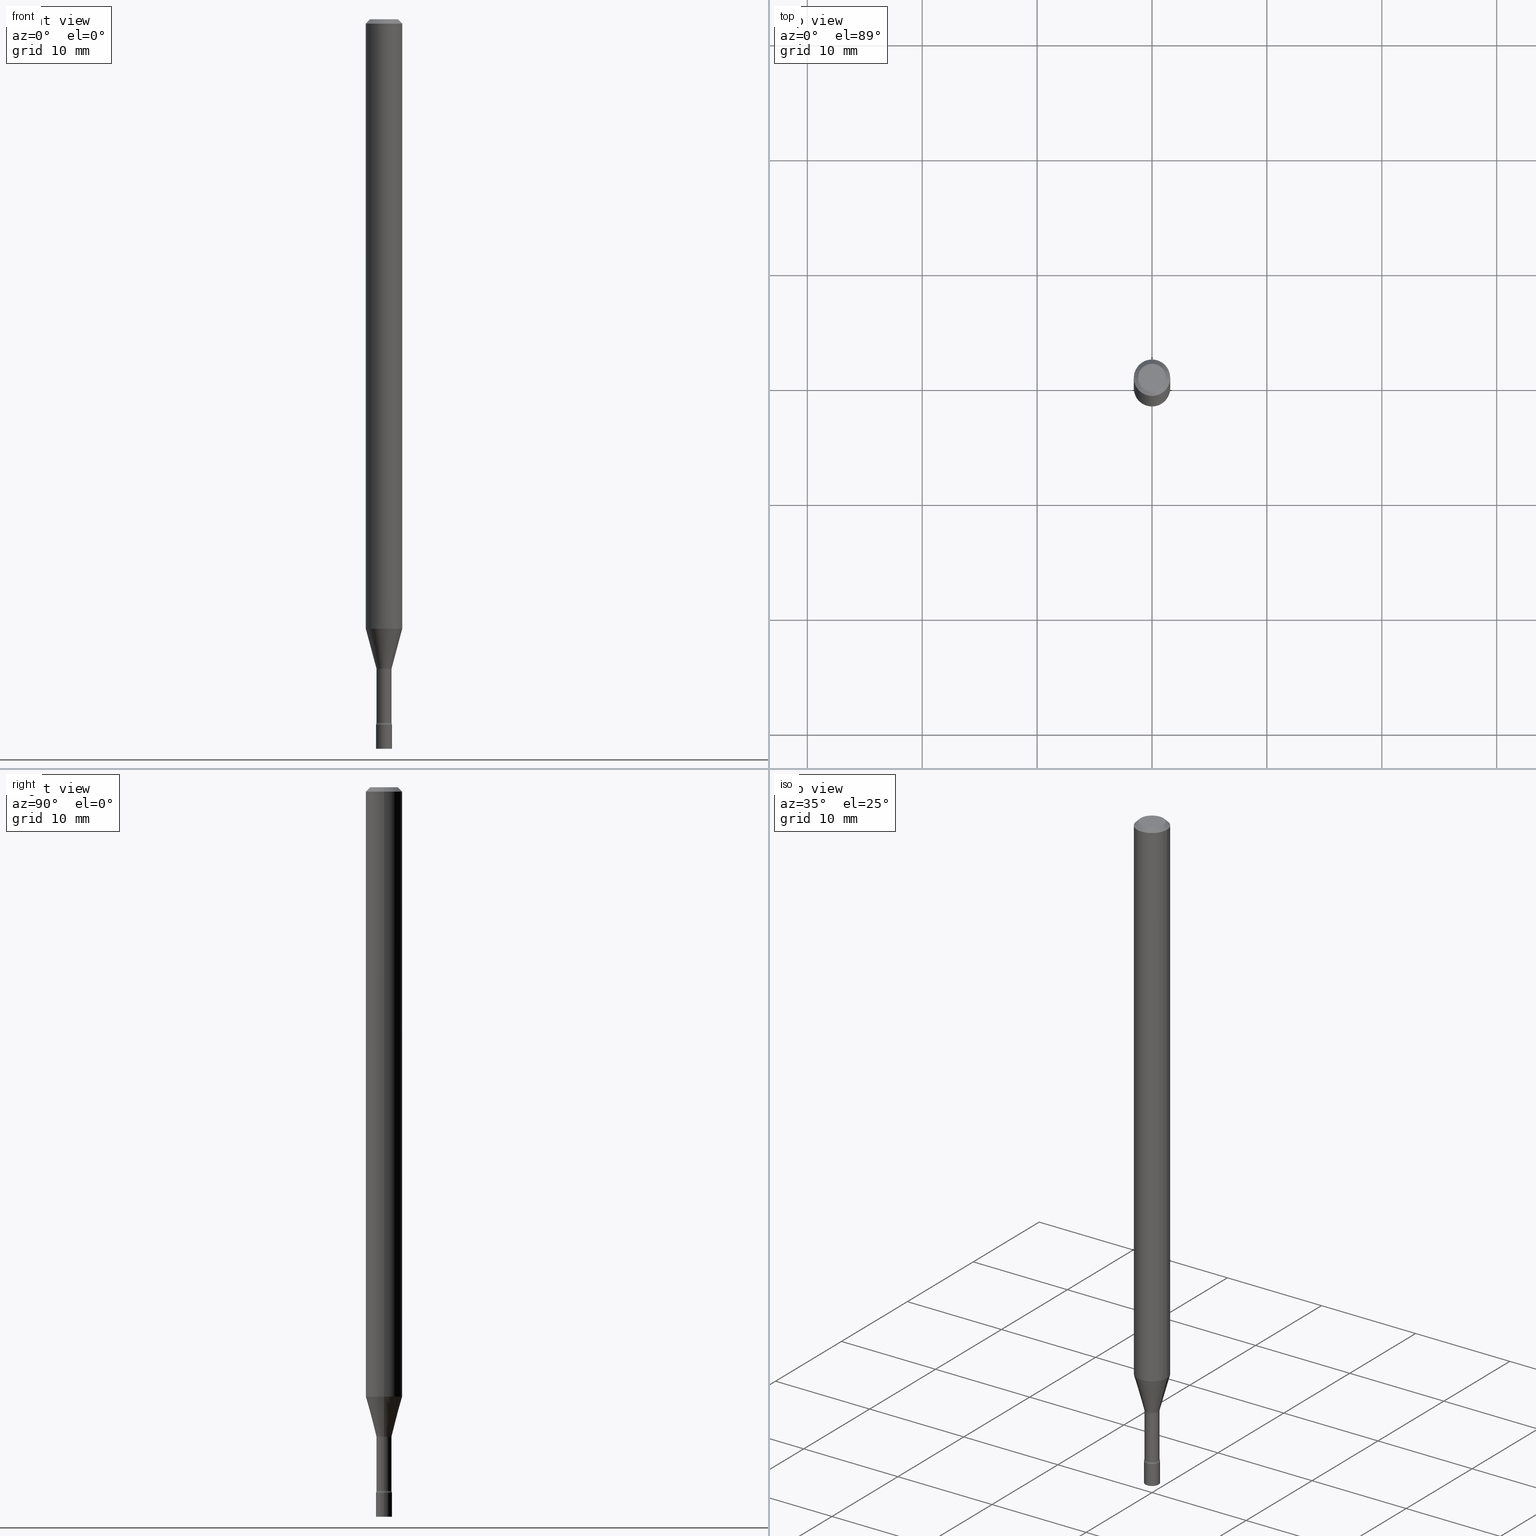
[diagram: canonical four-view strip — front | top / right | iso, engineering-drawing reading convention]
A machine part, canonical four-view strip (front | top / right | iso — engineering-drawing reading convention). The complete STEP part file that produces these views, byte-faithful:
ISO-10303-21;
HEADER;
FILE_DESCRIPTION (( 'STEP AP203' ),
    '1' );
FILE_NAME ('09677.STEP',
    '2024-03-09T00:42:40',
    ( '' ),
    ( '' ),
    'SwSTEP 2.0',
    'SolidWorks 2023',
    '' );
FILE_SCHEMA (( 'CONFIG_CONTROL_DESIGN' ));
ENDSEC;

DATA;
#1 = EDGE_CURVE ( 'NONE', #491, #335, #75, .T. ) ;
#2 = LINE ( 'NONE', #443, #513 ) ;
#3 = EDGE_LOOP ( 'NONE', ( #460, #303, #383, #221 ) ) ;
#4 = ADVANCED_BREP_SHAPE_REPRESENTATION ( '09677', ( #56, #385, #35 ), #66 ) ;
#5 = CC_DESIGN_PERSON_AND_ORGANIZATION_ASSIGNMENT ( #401, #356, ( #138 ) ) ;
#6 = AXIS2_PLACEMENT_3D ( 'NONE', #330, #488, #139 ) ;
#7 = CARTESIAN_POINT ( 'NONE',  ( -0.06250000000000000000, -3.227588070781090630E-15, -0.01500000000000003067 ) ) ;
#8 = CONICAL_SURFACE ( 'NONE', #265, 0.02636111260566398329, 0.2617993877991496854 ) ;
#9 = VERTEX_POINT ( 'NONE', #500 ) ;
#10 = DIRECTION ( 'NONE',  ( 2.438088387897960049E-29, -3.491481338843145188E-15, -1.000000000000000000 ) ) ;
#11 = ORIENTED_EDGE ( 'NONE', *, *, #192, .T. ) ;
#12 = DIRECTION ( 'NONE',  ( -2.445468806185136597E-29, 3.491481338843145583E-15, 1.000000000000000000 ) ) ;
#13 = EDGE_CURVE ( 'NONE', #331, #339, #193, .T. ) ;
#14 = VERTEX_POINT ( 'NONE', #426 ) ;
#15 = DIRECTION ( 'NONE',  ( 1.000000000000000000, -6.982962677686295110E-15, 0.000000000000000000 ) ) ;
#16 = CIRCLE ( 'NONE', #340, 0.02585000000000006043 ) ;
#17 = VERTEX_POINT ( 'NONE', #150 ) ;
#18 = LOCAL_TIME ( 19, 42, 40.00000000000000000, #313 ) ;
#19 = CIRCLE ( 'NONE', #398, 0.01499999999999994220 ) ;
#20 = EDGE_LOOP ( 'NONE', ( #64, #354, #496, #424 ) ) ;
#21 = ADVANCED_FACE ( 'NONE', ( #107 ), #189, .T. ) ;
#22 = LENGTH_MEASURE_WITH_UNIT ( LENGTH_MEASURE( 0.02539999999999999897 ), #497 );
#23 = ORIENTED_EDGE ( 'NONE', *, *, #210, .F. ) ;
#24 = EDGE_CURVE ( 'NONE', #452, #14, #342, .T. ) ;
#25 = DIRECTION ( 'NONE',  ( 1.000000000000000000, -6.982962677686254089E-15, 0.000000000000000000 ) ) ;
#26 = CARTESIAN_POINT ( 'NONE',  ( 5.910698104549476805E-29, -8.438910395983884306E-15, -2.417000000000000259 ) ) ;
#27 = AXIS2_PLACEMENT_3D ( 'NONE', #37, #85, #518 ) ;
#28 = VECTOR ( 'NONE', #364, 39.37007874015748143 ) ;
#29 = APPROVAL_DATE_TIME ( #404, #362 ) ;
#30 = ADVANCED_FACE ( 'NONE', ( #386 ), #121, .F. ) ;
#31 = CARTESIAN_POINT ( 'NONE',  ( 3.668203209277712094E-31, -5.237222008264728876E-17, -0.01500000000000003067 ) ) ;
#32 = DATE_TIME_ROLE ( 'creation_date' ) ;
#33 = LINE ( 'NONE', #195, #482 ) ;
#34 = CARTESIAN_POINT ( 'NONE',  ( 3.668203209277712094E-31, -5.237222008264728876E-17, -0.01500000000000003067 ) ) ;
#35 = AXIS2_PLACEMENT_3D ( 'NONE', #235, #326, #472 ) ;
#36 = AXIS2_PLACEMENT_3D ( 'NONE', #349, #421, #307 ) ;
#37 = CARTESIAN_POINT ( 'NONE',  ( 7.070806723891919892E-46, -1.009523804376275404E-31, -2.891391092786900929E-17 ) ) ;
#38 = EDGE_CURVE ( 'NONE', #207, #17, #111, .T. ) ;
#39 = DIRECTION ( 'NONE',  ( 1.000000000000000000, -6.982962677686277755E-15, 0.000000000000000000 ) ) ;
#40 = PERSON_AND_ORGANIZATION ( #251, #215 ) ;
#41 = CC_DESIGN_DATE_AND_TIME_ASSIGNMENT ( #475, #205, ( #138 ) ) ;
#42 = DIRECTION ( 'NONE',  ( 1.000000000000000000, -6.982962677686256455E-15, 0.000000000000000000 ) ) ;
#43 = DATE_AND_TIME ( #519, #381 ) ;
#44 = CIRCLE ( 'NONE', #184, 0.02636111260566398329 ) ;
#45 = VECTOR ( 'NONE', #302, 39.37007874015748143 ) ;
#46 = ORIENTED_EDGE ( 'NONE', *, *, #355, .F. ) ;
#47 = PERSON_AND_ORGANIZATION ( #251, #215 ) ;
#48 = DIRECTION ( 'NONE',  ( 1.000000000000000000, -6.982962677686266711E-15, 4.876176775795935793E-29 ) ) ;
#49 = EDGE_LOOP ( 'NONE', ( #369, #230, #299, #219 ) ) ;
#50 = DIRECTION ( 'NONE',  ( 2.445468806185136597E-29, -3.491481338843145583E-15, -1.000000000000000000 ) ) ;
#51 = ORIENTED_EDGE ( 'NONE', *, *, #427, .F. ) ;
#52 = CIRCLE ( 'NONE', #446, 0.02750000000000000014 ) ;
#53 = CARTESIAN_POINT ( 'NONE',  ( 0.000000000000000000, 0.000000000000000000, 0.000000000000000000 ) ) ;
#54 = CC_DESIGN_APPROVAL ( #453, ( #127 ) ) ;
#55 = ORIENTED_EDGE ( 'NONE', *, *, #124, .F. ) ;
#56 = MANIFOLD_SOLID_BREP ( 'Body-Move/Copy2[1]', #240 ) ;
#57 = ADVANCED_FACE ( 'NONE', ( #397 ), #241, .F. ) ;
#58 = DIRECTION ( 'NONE',  ( 1.000000000000000000, -6.982962677686260400E-15, 4.883557194083110659E-29 ) ) ;
#59 = ORIENTED_EDGE ( 'NONE', *, *, #355, .T. ) ;
#60 = DIRECTION ( 'NONE',  ( -2.445468806185136597E-29, 3.491481338843145583E-15, 1.000000000000000000 ) ) ;
#61 = ORIENTED_EDGE ( 'NONE', *, *, #106, .T. ) ;
#62 = DIRECTION ( 'NONE',  ( -2.445468806185136877E-29, 3.491481338843145188E-15, 1.000000000000000000 ) ) ;
#63 = VECTOR ( 'NONE', #118, 39.37007874015748143 ) ;
#64 = ORIENTED_EDGE ( 'NONE', *, *, #81, .F. ) ;
#65 = EDGE_CURVE ( 'NONE', #331, #9, #19, .T. ) ;
#66 =( GEOMETRIC_REPRESENTATION_CONTEXT ( 3 ) GLOBAL_UNCERTAINTY_ASSIGNED_CONTEXT ( ( #213 ) ) GLOBAL_UNIT_ASSIGNED_CONTEXT ( ( #105, #152, #345 ) ) REPRESENTATION_CONTEXT ( 'NONE', 'WORKASPACE' ) );
#67 = CARTESIAN_POINT ( 'NONE',  ( -0.02750000000000000014, -8.388407619211846505E-15, -2.417000000000000259 ) ) ;
#68 = DIRECTION ( 'NONE',  ( 1.000000000000000000, -6.982962677686279332E-15, 0.000000000000000000 ) ) ;
#69 = EDGE_CURVE ( 'NONE', #158, #375, #258, .T. ) ;
#70 = DIRECTION ( 'NONE',  ( 1.000000000000000000, -6.982962677686266711E-15, 4.876176775795935793E-29 ) ) ;
#71 = EDGE_LOOP ( 'NONE', ( #148, #268, #144, #59 ) ) ;
#72 = CYLINDRICAL_SURFACE ( 'NONE', #517, 0.02585000000000002920 ) ;
#73 = ORIENTED_EDGE ( 'NONE', *, *, #65, .F. ) ;
#74 = AXIS2_PLACEMENT_3D ( 'NONE', #348, #351, #470 ) ;
#75 = CIRCLE ( 'NONE', #433, 0.06250000000000000000 ) ;
#76 = CARTESIAN_POINT ( 'NONE',  ( 0.06250000000000000000, -4.811533449433680977E-16, -0.01500000000000003067 ) ) ;
#77 = PRODUCT_DEFINITION_SHAPE ( 'NONE', 'NONE',  #127 ) ;
#78 = SECURITY_CLASSIFICATION_LEVEL ( 'unclassified' ) ;
#79 = DIRECTION ( 'NONE',  ( 1.000000000000000000, -6.982962677686266711E-15, 4.876176775795935793E-29 ) ) ;
#80 = CARTESIAN_POINT ( 'NONE',  ( 0.02750000000000000014, -8.920734820744236646E-15, -2.500000000000000000 ) ) ;
#81 = EDGE_CURVE ( 'NONE', #375, #491, #131, .T. ) ;
#82 = AXIS2_PLACEMENT_3D ( 'NONE', #368, #376, #141 ) ;
#83 = APPROVAL_PERSON_ORGANIZATION ( #444, #453, #393 ) ;
#84 = DIRECTION ( 'NONE',  ( -1.000000000000000000, 6.982962677686266711E-15, 0.000000000000000000 ) ) ;
#85 = DIRECTION ( 'NONE',  ( -2.445468806185136597E-29, 3.491481338843145583E-15, 1.000000000000000000 ) ) ;
#86 = CALENDAR_DATE ( 2024, 8, 3 ) ;
#87 = EDGE_CURVE ( 'NONE', #418, #493, #237, .T. ) ;
#88 = DIRECTION ( 'NONE',  ( 1.000000000000000000, -6.982962677686262766E-15, 0.000000000000000000 ) ) ;
#89 = DATE_AND_TIME ( #86, #332 ) ;
#90 = AXIS2_PLACEMENT_3D ( 'NONE', #256, #50, #296 ) ;
#91 = LOCAL_TIME ( 19, 42, 40.00000000000000000, #194 ) ;
#92 = DIRECTION ( 'NONE',  ( -1.000000000000000000, 6.982962677686265922E-15, -4.876176775795935793E-29 ) ) ;
#93 = ORIENTED_EDGE ( 'NONE', *, *, #196, .F. ) ;
#94 = FACE_OUTER_BOUND ( 'NONE', #508, .T. ) ;
#95 = VERTEX_POINT ( 'NONE', #361 ) ;
#96 = DIRECTION ( 'NONE',  ( -2.445468806185136597E-29, 3.491481338843145583E-15, 1.000000000000000000 ) ) ;
#97 = VERTEX_POINT ( 'NONE', #473 ) ;
#98 = EDGE_CURVE ( 'NONE', #207, #97, #33, .T. ) ;
#99 = TOROIDAL_SURFACE ( 'NONE', #214, 0.04085000000000000436, 0.01499999999999994740 ) ;
#100 = DIRECTION ( 'NONE',  ( 1.000000000000000000, -6.982962677686267499E-15, 4.876681293081646444E-29 ) ) ;
#101 = ORIENTED_EDGE ( 'NONE', *, *, #69, .T. ) ;
#102 = AXIS2_PLACEMENT_3D ( 'NONE', #400, #481, #79 ) ;
#103 = DIRECTION ( 'NONE',  ( 1.000000000000000000, -6.982962677686277755E-15, 0.000000000000000000 ) ) ;
#104 = VERTEX_POINT ( 'NONE', #80 ) ;
#105 =( CONVERSION_BASED_UNIT ( 'INCH', #22 ) LENGTH_UNIT ( ) NAMED_UNIT ( #223 ) );
#106 = EDGE_CURVE ( 'NONE', #95, #331, #16, .T. ) ;
#107 = FACE_OUTER_BOUND ( 'NONE', #209, .T. ) ;
#108 = CARTESIAN_POINT ( 'NONE',  ( -0.02636111260566398329, -7.210736072578448684E-15, -2.223092501787273356 ) ) ;
#109 = CC_DESIGN_APPROVAL ( #272, ( #138 ) ) ;
#110 = EDGE_LOOP ( 'NONE', ( #471, #312 ) ) ;
#111 = CIRCLE ( 'NONE', #249, 0.01500000000000001853 ) ;
#112 = CARTESIAN_POINT ( 'NONE',  ( 5.445997374903524413E-29, -7.775440912504077838E-15, -2.226974787463811278 ) ) ;
#113 = DIRECTION ( 'NONE',  ( 1.000000000000000000, -6.982962677686260400E-15, 4.883557194083110659E-29 ) ) ;
#114 = CARTESIAN_POINT ( 'NONE',  ( -0.06250000000000000000, 3.840629472727443437E-16, -0.01500000000000003067 ) ) ;
#115 = ORIENTED_EDGE ( 'NONE', *, *, #380, .F. ) ;
#116 = ADVANCED_FACE ( 'NONE', ( #441 ), #234, .F. ) ;
#117 = PERSON_AND_ORGANIZATION_ROLE ( 'creator' ) ;
#118 = DIRECTION ( 'NONE',  ( -0.2588190451025210170, 5.211531920934547886E-15, 0.9659258262890682012 ) ) ;
#119 = CIRCLE ( 'NONE', #430, 0.02750000000000000014 ) ;
#120 = CIRCLE ( 'NONE', #198, 0.02750000000000000014 ) ;
#121 = TOROIDAL_SURFACE ( 'NONE', #176, 0.04084999999999999742, 0.01500000000000002373 ) ;
#122 = CALENDAR_DATE ( 2024, 8, 3 ) ;
#123 = DIRECTION ( 'NONE',  ( 1.000000000000000000, -6.982962677686262766E-15, 0.000000000000000000 ) ) ;
#124 = EDGE_CURVE ( 'NONE', #335, #491, #222, .T. ) ;
#125 = DIRECTION ( 'NONE',  ( 1.000000000000000000, -6.982962677686279332E-15, 0.000000000000000000 ) ) ;
#126 = CARTESIAN_POINT ( 'NONE',  ( 3.668203209277712094E-31, -5.237222008264728876E-17, -0.01500000000000003067 ) ) ;
#127 = PRODUCT_DEFINITION ( 'UNKNOWN', '', #480, #465 ) ;
#128 = AXIS2_PLACEMENT_3D ( 'NONE', #178, #287, #520 ) ;
#129 = AXIS2_PLACEMENT_3D ( 'NONE', #34, #359, #363 ) ;
#130 = APPLICATION_CONTEXT ( 'configuration controlled 3d designs of mechanical parts and assemblies' ) ;
#131 = LINE ( 'NONE', #76, #28 ) ;
#132 = DATE_AND_TIME ( #276, #18 ) ;
#133 = CARTESIAN_POINT ( 'NONE',  ( 1.920314736364314350E-16, 0.02749999999999156244, -2.417000000000000259 ) ) ;
#134 = PERSON_AND_ORGANIZATION ( #251, #215 ) ;
#135 = CC_DESIGN_PERSON_AND_ORGANIZATION_ASSIGNMENT ( #248, #117, ( #127 ) ) ;
#136 = DIRECTION ( 'NONE',  ( -2.445468806185136597E-29, 3.491481338843145583E-15, 1.000000000000000000 ) ) ;
#137 = ORIENTED_EDGE ( 'NONE', *, *, #436, .F. ) ;
#138 = SECURITY_CLASSIFICATION ( '', '', #78 ) ;
#139 = DIRECTION ( 'NONE',  ( 1.000000000000000000, -6.982962677686266711E-15, 4.876176775795935793E-29 ) ) ;
#140 = ORIENTED_EDGE ( 'NONE', *, *, #502, .T. ) ;
#141 = DIRECTION ( 'NONE',  ( 1.000000000000000000, -6.982962677686244622E-15, 0.000000000000000000 ) ) ;
#142 = VERTEX_POINT ( 'NONE', #163 ) ;
#143 = FACE_OUTER_BOUND ( 'NONE', #264, .T. ) ;
#144 = ORIENTED_EDGE ( 'NONE', *, *, #38, .T. ) ;
#145 = CC_DESIGN_PERSON_AND_ORGANIZATION_ASSIGNMENT ( #47, #244, ( #480 ) ) ;
#146 = AXIS2_PLACEMENT_3D ( 'NONE', #384, #147, #103 ) ;
#147 = DIRECTION ( 'NONE',  ( -2.445468806185136597E-29, 3.491481338843145583E-15, 1.000000000000000000 ) ) ;
#148 = ORIENTED_EDGE ( 'NONE', *, *, #409, .F. ) ;
#149 = EDGE_CURVE ( 'NONE', #493, #97, #308, .T. ) ;
#150 = CARTESIAN_POINT ( 'NONE',  ( 0.02585000000000000492, -7.955950497722266829E-15, -2.226974787463811278 ) ) ;
#151 = CARTESIAN_POINT ( 'NONE',  ( -0.02585000000000002920, 1.836752971939861056E-16, -1.271544720830894635E-30 ) ) ;
#152 =( NAMED_UNIT ( * ) PLANE_ANGLE_UNIT ( ) SI_UNIT ( $, .RADIAN. ) );
#153 = AXIS2_PLACEMENT_3D ( 'NONE', #321, #197, #160 ) ;
#154 = CARTESIAN_POINT ( 'NONE',  ( 0.04084999999999999742, -8.060694937887560199E-15, -2.226974787463811278 ) ) ;
#155 = CARTESIAN_POINT ( 'NONE',  ( 0.000000000000000000, 0.000000000000000000, 0.000000000000000000 ) ) ;
#156 = ORIENTED_EDGE ( 'NONE', *, *, #24, .F. ) ;
#157 = APPROVAL_DATE_TIME ( #89, #453 ) ;
#158 = VERTEX_POINT ( 'NONE', #239 ) ;
#159 = COORDINATED_UNIVERSAL_TIME_OFFSET ( 5, 0, .BEHIND. ) ;
#160 = DIRECTION ( 'NONE',  ( 1.000000000000000000, -6.982962677686265922E-15, 4.876176775795935793E-29 ) ) ;
#161 = CIRCLE ( 'NONE', #439, 0.06250000000000000000 ) ;
#162 = CARTESIAN_POINT ( 'NONE',  ( 5.106677696782196948E-29, -7.290982341179659020E-15, -2.088220337902600754 ) ) ;
#163 = CARTESIAN_POINT ( 'NONE',  ( -0.02750000000000000014, -8.388407619211846505E-15, -2.500000000000000000 ) ) ;
#164 = DIRECTION ( 'NONE',  ( -6.982962677686266711E-15, -1.000000000000000000, 3.491481338843145583E-15 ) ) ;
#165 = VECTOR ( 'NONE', #62, 39.37007874015748143 ) ;
#166 = MECHANICAL_CONTEXT ( 'NONE', #130, 'mechanical' ) ;
#167 = CONICAL_SURFACE ( 'NONE', #323, 0.02636111260566398329, 0.2617993877991496854 ) ;
#168 = CARTESIAN_POINT ( 'NONE',  ( 3.316907271900976096E-16, 0.04749999999999999362, -1.803023190589839165E-16 ) ) ;
#169 = ADVANCED_FACE ( 'NONE', ( #320 ), #511, .T. ) ;
#170 = APPLICATION_PROTOCOL_DEFINITION ( 'international standard', 'config_control_design', 1994, #130 ) ;
#171 = CARTESIAN_POINT ( 'NONE',  ( 7.070806723891919892E-46, -1.009523804376275404E-31, -2.891391092786900929E-17 ) ) ;
#172 = DIRECTION ( 'NONE',  ( 1.000000000000000000, -6.982962677686256455E-15, 0.000000000000000000 ) ) ;
#173 = EDGE_LOOP ( 'NONE', ( #101, #408 ) ) ;
#174 = ADVANCED_FACE ( 'NONE', ( #280 ), #437, .T. ) ;
#175 = CARTESIAN_POINT ( 'NONE',  ( -0.02585000000000000492, -7.911560524578133183E-15, -2.226974787463811278 ) ) ;
#176 = AXIS2_PLACEMENT_3D ( 'NONE', #310, #468, #113 ) ;
#177 = EDGE_LOOP ( 'NONE', ( #462, #429, #371, #137 ) ) ;
#178 = CARTESIAN_POINT ( 'NONE',  ( 5.445997374903524413E-29, -7.775440912504077838E-15, -2.226974787463811278 ) ) ;
#179 = EDGE_LOOP ( 'NONE', ( #61, #506, #46, #217 ) ) ;
#180 = APPLICATION_CONTEXT ( 'configuration controlled 3d designs of mechanical parts and assemblies' ) ;
#181 = DIRECTION ( 'NONE',  ( 1.000000000000000000, -6.982962677686256455E-15, 0.000000000000000000 ) ) ;
#182 = ORIENTED_EDGE ( 'NONE', *, *, #380, .T. ) ;
#183 = EDGE_CURVE ( 'NONE', #418, #207, #247, .T. ) ;
#184 = AXIS2_PLACEMENT_3D ( 'NONE', #372, #451, #172 ) ;
#185 = DIRECTION ( 'NONE',  ( -2.445468806185136597E-29, 3.491481338843145583E-15, 1.000000000000000000 ) ) ;
#186 = EDGE_LOOP ( 'NONE', ( #392, #255, #490, #156 ) ) ;
#187 = CARTESIAN_POINT ( 'NONE',  ( 5.436503366384851670E-29, -7.761885984512386463E-15, -2.223092501787273356 ) ) ;
#188 = CIRCLE ( 'NONE', #82, 0.02750000000000000014 ) ;
#189 = CYLINDRICAL_SURFACE ( 'NONE', #36, 0.06250000000000000000 ) ;
#190 = CONICAL_SURFACE ( 'NONE', #283, 0.06250000000000000000, 0.7853981633974483900 ) ;
#191 = APPROVAL_ROLE ( '' ) ;
#192 = EDGE_CURVE ( 'NONE', #346, #9, #52, .T. ) ;
#193 = LINE ( 'NONE', #151, #267 ) ;
#194 = COORDINATED_UNIVERSAL_TIME_OFFSET ( 5, 0, .BEHIND. ) ;
#195 = CARTESIAN_POINT ( 'NONE',  ( 0.02636111260566398329, -7.945964649980022290E-15, -2.223092501787273356 ) ) ;
#196 = EDGE_CURVE ( 'NONE', #104, #14, #203, .T. ) ;
#197 = DIRECTION ( 'NONE',  ( -2.438088387897960049E-29, 3.491481338843145188E-15, 1.000000000000000000 ) ) ;
#198 = AXIS2_PLACEMENT_3D ( 'NONE', #463, #417, #419 ) ;
#199 = CARTESIAN_POINT ( 'NONE',  ( -0.04085000000000000436, -8.124774023482161163E-15, -2.410160592130893953 ) ) ;
#200 = CARTESIAN_POINT ( 'NONE',  ( 5.893972545952799230E-29, -8.415030731040162465E-15, -2.410160592130893953 ) ) ;
#201 = CALENDAR_DATE ( 2024, 8, 3 ) ;
#202 = ADVANCED_FACE ( 'NONE', ( #478 ), #190, .T. ) ;
#203 = LINE ( 'NONE', #281, #458 ) ;
#204 = CONICAL_SURFACE ( 'NONE', #90, 0.06250000000000000000, 0.7853981633974483900 ) ;
#205 = DATE_TIME_ROLE ( 'classification_date' ) ;
#206 = PLANE ( 'NONE',  #322 ) ;
#207 = VERTEX_POINT ( 'NONE', #325 ) ;
#208 = FACE_OUTER_BOUND ( 'NONE', #177, .T. ) ;
#209 = EDGE_LOOP ( 'NONE', ( #486, #377, #352, #263 ) ) ;
#210 = EDGE_CURVE ( 'NONE', #493, #335, #2, .T. ) ;
#211 = CARTESIAN_POINT ( 'NONE',  ( 5.445997374903524413E-29, -7.775440912504077838E-15, -2.226974787463811278 ) ) ;
#212 = ORIENTED_EDGE ( 'NONE', *, *, #149, .F. ) ;
#213 = UNCERTAINTY_MEASURE_WITH_UNIT (LENGTH_MEASURE( 1.000000000000000082E-05 ), #105, 'distance_accuracy_value', 'NONE');
#214 = AXIS2_PLACEMENT_3D ( 'NONE', #445, #12, #405 ) ;
#215 = ORGANIZATION ( 'UNSPECIFIED', 'UNSPECIFIED', '' ) ;
#216 = CARTESIAN_POINT ( 'NONE',  ( 0.02749999999999997238, -8.630941869620257587E-15, -2.417000000000000259 ) ) ;
#217 = ORIENTED_EDGE ( 'NONE', *, *, #487, .F. ) ;
#218 = FACE_OUTER_BOUND ( 'NONE', #110, .T. ) ;
#219 = ORIENTED_EDGE ( 'NONE', *, *, #502, .F. ) ;
#220 = LINE ( 'NONE', #390, #474 ) ;
#221 = ORIENTED_EDGE ( 'NONE', *, *, #98, .F. ) ;
#222 = CIRCLE ( 'NONE', #129, 0.06250000000000000000 ) ;
#223 = DIMENSIONAL_EXPONENTS ( 1.000000000000000000, 0.000000000000000000, 0.000000000000000000, 0.000000000000000000, 0.000000000000000000, 0.000000000000000000, 0.000000000000000000 ) ;
#224 = CYLINDRICAL_SURFACE ( 'NONE', #341, 0.02585000000000002920 ) ;
#225 = EDGE_LOOP ( 'NONE', ( #388, #456, #274, #93 ) ) ;
#226 = CARTESIAN_POINT ( 'NONE',  ( -0.06250000000000000000, -6.846893131329596403E-15, -2.088220337902600754 ) ) ;
#227 = EDGE_LOOP ( 'NONE', ( #337, #271, #140, #233 ) ) ;
#228 = ADVANCED_FACE ( 'NONE', ( #208 ), #204, .T. ) ;
#229 = CARTESIAN_POINT ( 'NONE',  ( 0.06250000000000000000, -4.888073874380389458E-16, -0.01500000000000003067 ) ) ;
#230 = ORIENTED_EDGE ( 'NONE', *, *, #427, .T. ) ;
#231 = ADVANCED_FACE ( 'NONE', ( #143 ), #167, .T. ) ;
#232 = DIRECTION ( 'NONE',  ( -0.7071067811865475727, 2.468850131082257455E-15, -0.7071067811865474617 ) ) ;
#233 = ORIENTED_EDGE ( 'NONE', *, *, #38, .F. ) ;
#234 = TOROIDAL_SURFACE ( 'NONE', #504, 0.04085000000000000436, 0.01499999999999994740 ) ;
#235 = CARTESIAN_POINT ( 'NONE',  ( 0.000000000000000000, 0.000000000000000000, 0.000000000000000000 ) ) ;
#236 = DIRECTION ( 'NONE',  ( 7.105427357601001859E-15, 1.000000000000000000, -3.491481338843145583E-15 ) ) ;
#237 = LINE ( 'NONE', #285, #63 ) ;
#238 = SHAPE_DEFINITION_REPRESENTATION ( #77, #4 ) ;
#239 = CARTESIAN_POINT ( 'NONE',  ( -0.04749999999999999362, 3.578768372314209027E-16, -2.891391092787141902E-17 ) ) ;
#240 = CLOSED_SHELL ( 'NONE', ( #344, #169, #293, #306 ) ) ;
#241 = PLANE ( 'NONE',  #309 ) ;
#242 = EDGE_CURVE ( 'NONE', #9, #346, #119, .T. ) ;
#243 = DIRECTION ( 'NONE',  ( 1.000000000000000000, -6.982962677686269077E-15, 4.883557194083113462E-29 ) ) ;
#244 = PERSON_AND_ORGANIZATION_ROLE ( 'creator' ) ;
#245 = CARTESIAN_POINT ( 'NONE',  ( 1.920314736364334811E-16, 0.02749999999999127101, -2.500000000000000000 ) ) ;
#246 = ORIENTED_EDGE ( 'NONE', *, *, #469, .T. ) ;
#247 = CIRCLE ( 'NONE', #261, 0.02636111260566398329 ) ;
#248 = PERSON_AND_ORGANIZATION ( #251, #215 ) ;
#249 = AXIS2_PLACEMENT_3D ( 'NONE', #154, #164, #434 ) ;
#250 = FACE_OUTER_BOUND ( 'NONE', #225, .T. ) ;
#251 = PERSON ( 'UNSPECIFIED', 'UNSPECIFIED', 'UNSPECIFIED', ('UNSPECIFIED'), ('UNSPECIFIED'), ('UNSPECIFIED') ) ;
#252 = ADVANCED_FACE ( 'NONE', ( #370 ), #277, .F. ) ;
#253 = ORIENTED_EDGE ( 'NONE', *, *, #149, .T. ) ;
#254 = DIRECTION ( 'NONE',  ( -2.445468806185136597E-29, 3.491481338843145583E-15, 1.000000000000000000 ) ) ;
#255 = ORIENTED_EDGE ( 'NONE', *, *, #360, .T. ) ;
#256 = CARTESIAN_POINT ( 'NONE',  ( 3.668203209277712094E-31, -5.237222008264728876E-17, -0.01500000000000003067 ) ) ;
#257 = EDGE_LOOP ( 'NONE', ( #246, #295 ) ) ;
#258 = CIRCLE ( 'NONE', #27, 0.04749999999999999362 ) ;
#259 = CC_DESIGN_APPROVAL ( #362, ( #480 ) ) ;
#260 = DIRECTION ( 'NONE',  ( 1.000000000000000000, -6.982962677686265922E-15, 4.876176775795935793E-29 ) ) ;
#261 = AXIS2_PLACEMENT_3D ( 'NONE', #514, #399, #42 ) ;
#262 = CARTESIAN_POINT ( 'NONE',  ( 6.113672015462842613E-29, -8.728703347107864943E-15, -2.500000000000000000 ) ) ;
#263 = ORIENTED_EDGE ( 'NONE', *, *, #366, .F. ) ;
#264 = EDGE_LOOP ( 'NONE', ( #379, #447, #406, #212 ) ) ;
#265 = AXIS2_PLACEMENT_3D ( 'NONE', #187, #378, #181 ) ;
#266 = FACE_OUTER_BOUND ( 'NONE', #3, .T. ) ;
#267 = VECTOR ( 'NONE', #498, 39.37007874015748143 ) ;
#268 = ORIENTED_EDGE ( 'NONE', *, *, #269, .F. ) ;
#269 = EDGE_CURVE ( 'NONE', #207, #418, #44, .T. ) ;
#270 = DIRECTION ( 'NONE',  ( -2.445468806185136597E-29, 3.491481338843145583E-15, 1.000000000000000000 ) ) ;
#271 = ORIENTED_EDGE ( 'NONE', *, *, #409, .T. ) ;
#272 = APPROVAL ( #288, 'UNSPECIFIED' ) ;
#273 = DIRECTION ( 'NONE',  ( -2.445468806185136597E-29, 3.491481338843145583E-15, 1.000000000000000000 ) ) ;
#274 = ORIENTED_EDGE ( 'NONE', *, *, #469, .F. ) ;
#275 = EDGE_CURVE ( 'NONE', #375, #158, #284, .T. ) ;
#276 = CALENDAR_DATE ( 2024, 8, 3 ) ;
#277 = TOROIDAL_SURFACE ( 'NONE', #495, 0.04084999999999999742, 0.01500000000000002373 ) ;
#278 = CARTESIAN_POINT ( 'NONE',  ( 5.893972545952800351E-29, -8.415030731040162465E-15, -2.410160592130894397 ) ) ;
#279 = CC_DESIGN_PERSON_AND_ORGANIZATION_ASSIGNMENT ( #134, #324, ( #480 ) ) ;
#280 = FACE_OUTER_BOUND ( 'NONE', #304, .T. ) ;
#281 = CARTESIAN_POINT ( 'NONE',  ( 0.02750000000000000014, -1.920314736363723444E-16, 1.340948613343882413E-30 ) ) ;
#282 = DIRECTION ( 'NONE',  ( -2.445468806185136597E-29, 3.491481338843145583E-15, 1.000000000000000000 ) ) ;
#283 = AXIS2_PLACEMENT_3D ( 'NONE', #126, #440, #84 ) ;
#284 = CIRCLE ( 'NONE', #292, 0.04749999999999999362 ) ;
#285 = CARTESIAN_POINT ( 'NONE',  ( -0.02636111260566398329, -7.574579013827300965E-15, -2.223092501787273356 ) ) ;
#286 = APPLICATION_PROTOCOL_DEFINITION ( 'international standard', 'config_control_design', 1994, #180 ) ;
#287 = DIRECTION ( 'NONE',  ( -2.445468806185136597E-29, 3.491481338843145583E-15, 1.000000000000000000 ) ) ;
#288 = APPROVAL_STATUS ( 'not_yet_approved' ) ;
#289 = ADVANCED_FACE ( 'NONE', ( #218 ), #410, .F. ) ;
#290 = FACE_OUTER_BOUND ( 'NONE', #403, .T. ) ;
#291 = ORIENTED_EDGE ( 'NONE', *, *, #106, .F. ) ;
#292 = AXIS2_PLACEMENT_3D ( 'NONE', #171, #136, #100 ) ;
#293 = ADVANCED_FACE ( 'NONE', ( #415 ), #374, .T. ) ;
#294 = CARTESIAN_POINT ( 'NONE',  ( 5.106677696782196948E-29, -7.290982341179659020E-15, -2.088220337902600754 ) ) ;
#295 = ORIENTED_EDGE ( 'NONE', *, *, #24, .T. ) ;
#296 = DIRECTION ( 'NONE',  ( -1.000000000000000000, 6.982962677686266711E-15, 0.000000000000000000 ) ) ;
#297 = EDGE_LOOP ( 'NONE', ( #73, #291, #182, #11 ) ) ;
#298 = DIRECTION ( 'NONE',  ( -2.445468806185136877E-29, 3.491481338843145188E-15, 1.000000000000000000 ) ) ;
#299 = ORIENTED_EDGE ( 'NONE', *, *, #487, .T. ) ;
#300 = EDGE_CURVE ( 'NONE', #104, #142, #188, .T. ) ;
#301 = CIRCLE ( 'NONE', #74, 0.01500000000000001853 ) ;
#302 = DIRECTION ( 'NONE',  ( -2.445468806185136877E-29, 3.491481338843145188E-15, 1.000000000000000000 ) ) ;
#303 = ORIENTED_EDGE ( 'NONE', *, *, #87, .T. ) ;
#304 = EDGE_LOOP ( 'NONE', ( #23, #253, #412, #55 ) ) ;
#305 = DIRECTION ( 'NONE',  ( -2.445468806185136877E-29, 3.491481338843145188E-15, 1.000000000000000000 ) ) ;
#306 = ADVANCED_FACE ( 'NONE', ( #94 ), #206, .T. ) ;
#307 = DIRECTION ( 'NONE',  ( 1.000000000000000000, -6.982962677686266711E-15, 4.876176775795935793E-29 ) ) ;
#308 = CIRCLE ( 'NONE', #316, 0.06250000000000000000 ) ;
#309 = AXIS2_PLACEMENT_3D ( 'NONE', #168, #318, #476 ) ;
#310 = CARTESIAN_POINT ( 'NONE',  ( 5.445997374903524413E-29, -7.775440912504077838E-15, -2.226974787463811278 ) ) ;
#311 = CARTESIAN_POINT ( 'NONE',  ( 0.04085000000000000436, -8.700284756423646403E-15, -2.410160592130893953 ) ) ;
#312 = ORIENTED_EDGE ( 'NONE', *, *, #242, .F. ) ;
#313 = COORDINATED_UNIVERSAL_TIME_OFFSET ( 5, 0, .BEHIND. ) ;
#314 = ORIENTED_EDGE ( 'NONE', *, *, #65, .T. ) ;
#315 = APPROVAL_STATUS ( 'not_yet_approved' ) ;
#316 = AXIS2_PLACEMENT_3D ( 'NONE', #162, #394, #123 ) ;
#317 = LOCAL_TIME ( 19, 42, 40.00000000000000000, #510 ) ;
#318 = DIRECTION ( 'NONE',  ( 2.438088387897960049E-29, -3.491481338843145188E-15, -1.000000000000000000 ) ) ;
#319 = CARTESIAN_POINT ( 'NONE',  ( 5.910698104549476805E-29, -8.438910395983884306E-15, -2.417000000000000259 ) ) ;
#320 = FACE_OUTER_BOUND ( 'NONE', #257, .T. ) ;
#321 = CARTESIAN_POINT ( 'NONE',  ( 5.910698104549476805E-29, -8.438910395983884306E-15, -2.417000000000000259 ) ) ;
#322 = AXIS2_PLACEMENT_3D ( 'NONE', #245, #10, #92 ) ;
#323 = AXIS2_PLACEMENT_3D ( 'NONE', #328, #492, #402 ) ;
#324 = PERSON_AND_ORGANIZATION_ROLE ( 'design_supplier' ) ;
#325 = CARTESIAN_POINT ( 'NONE',  ( 0.02636111260566398329, -7.945964649980022290E-15, -2.223092501787273356 ) ) ;
#326 = DIRECTION ( 'NONE',  ( 0.000000000000000000, 0.000000000000000000, 1.000000000000000000 ) ) ;
#327 = EDGE_CURVE ( 'NONE', #97, #493, #161, .T. ) ;
#328 = CARTESIAN_POINT ( 'NONE',  ( 5.436503366384851670E-29, -7.761885984512386463E-15, -2.223092501787273356 ) ) ;
#329 = ADVANCED_FACE ( 'NONE', ( #290 ), #99, .F. ) ;
#330 = CARTESIAN_POINT ( 'NONE',  ( 0.000000000000000000, 0.000000000000000000, 0.000000000000000000 ) ) ;
#331 = VERTEX_POINT ( 'NONE', #484 ) ;
#332 = LOCAL_TIME ( 19, 42, 40.00000000000000000, #432 ) ;
#333 = AXIS2_PLACEMENT_3D ( 'NONE', #26, #464, #68 ) ;
#334 = CYLINDRICAL_SURFACE ( 'NONE', #391, 0.02750000000000000014 ) ;
#335 = VERTEX_POINT ( 'NONE', #7 ) ;
#336 = DIRECTION ( 'NONE',  ( -2.438088387897960049E-29, 3.491481338843145188E-15, 1.000000000000000000 ) ) ;
#337 = ORIENTED_EDGE ( 'NONE', *, *, #183, .F. ) ;
#338 = LINE ( 'NONE', #114, #422 ) ;
#339 = VERTEX_POINT ( 'NONE', #175 ) ;
#340 = AXIS2_PLACEMENT_3D ( 'NONE', #278, #357, #39 ) ;
#341 = AXIS2_PLACEMENT_3D ( 'NONE', #425, #461, #70 ) ;
#342 = CIRCLE ( 'NONE', #333, 0.02750000000000000014 ) ;
#343 = DIRECTION ( 'NONE',  ( 1.000000000000000000, -6.982962677686266711E-15, 0.000000000000000000 ) ) ;
#344 = ADVANCED_FACE ( 'NONE', ( #250 ), #334, .T. ) ;
#345 =( NAMED_UNIT ( * ) SI_UNIT ( $, .STERADIAN. ) SOLID_ANGLE_UNIT ( ) );
#346 = VERTEX_POINT ( 'NONE', #216 ) ;
#347 = PRODUCT_RELATED_PRODUCT_CATEGORY ( 'detail', '', ( #512 ) ) ;
#348 = CARTESIAN_POINT ( 'NONE',  ( -0.04084999999999999742, -7.485184204946076536E-15, -2.226974787463811278 ) ) ;
#349 = CARTESIAN_POINT ( 'NONE',  ( 0.000000000000000000, 0.000000000000000000, 0.000000000000000000 ) ) ;
#350 = CIRCLE ( 'NONE', #128, 0.02585000000000000492 ) ;
#351 = DIRECTION ( 'NONE',  ( 7.105427357601001859E-15, 1.000000000000000000, -3.491481338843145583E-15 ) ) ;
#352 = ORIENTED_EDGE ( 'NONE', *, *, #1, .F. ) ;
#353 = APPROVAL_DATE_TIME ( #43, #272 ) ;
#354 = ORIENTED_EDGE ( 'NONE', *, *, #69, .F. ) ;
#355 = EDGE_CURVE ( 'NONE', #17, #339, #350, .T. ) ;
#356 = PERSON_AND_ORGANIZATION_ROLE ( 'classification_officer' ) ;
#357 = DIRECTION ( 'NONE',  ( -2.445468806185136597E-29, 3.491481338843145583E-15, 1.000000000000000000 ) ) ;
#358 = APPROVAL_PERSON_ORGANIZATION ( #40, #362, #442 ) ;
#359 = DIRECTION ( 'NONE',  ( -2.445468806185136597E-29, 3.491481338843145583E-15, 1.000000000000000000 ) ) ;
#360 = EDGE_CURVE ( 'NONE', #142, #104, #414, .T. ) ;
#361 = CARTESIAN_POINT ( 'NONE',  ( 0.02585000000000006043, -8.595540316258353034E-15, -2.410160592130894397 ) ) ;
#362 = APPROVAL ( #315, 'UNSPECIFIED' ) ;
#363 = DIRECTION ( 'NONE',  ( 1.000000000000000000, -6.982962677686266711E-15, 0.000000000000000000 ) ) ;
#364 = DIRECTION ( 'NONE',  ( 0.7071067811865475727, -7.319954787623256045E-15, -0.7071067811865474617 ) ) ;
#365 = CIRCLE ( 'NONE', #146, 0.02585000000000006043 ) ;
#366 = EDGE_CURVE ( 'NONE', #97, #491, #382, .T. ) ;
#367 = PERSON_AND_ORGANIZATION ( #251, #215 ) ;
#368 = CARTESIAN_POINT ( 'NONE',  ( 6.113672015462842613E-29, -8.728703347107864943E-15, -2.500000000000000000 ) ) ;
#369 = ORIENTED_EDGE ( 'NONE', *, *, #13, .F. ) ;
#370 = FACE_OUTER_BOUND ( 'NONE', #227, .T. ) ;
#371 = ORIENTED_EDGE ( 'NONE', *, *, #1, .T. ) ;
#372 = CARTESIAN_POINT ( 'NONE',  ( 5.436503366384851670E-29, -7.761885984512386463E-15, -2.223092501787273356 ) ) ;
#373 = APPROVAL_PERSON_ORGANIZATION ( #367, #272, #191 ) ;
#374 = CYLINDRICAL_SURFACE ( 'NONE', #6, 0.02750000000000000014 ) ;
#375 = VERTEX_POINT ( 'NONE', #505 ) ;
#376 = DIRECTION ( 'NONE',  ( -2.445468806185136597E-29, 3.491481338843145583E-15, 1.000000000000000000 ) ) ;
#377 = ORIENTED_EDGE ( 'NONE', *, *, #210, .T. ) ;
#378 = DIRECTION ( 'NONE',  ( -2.445468806185136597E-29, 3.491481338843145583E-15, 1.000000000000000000 ) ) ;
#379 = ORIENTED_EDGE ( 'NONE', *, *, #87, .F. ) ;
#380 = EDGE_CURVE ( 'NONE', #95, #346, #479, .T. ) ;
#381 = LOCAL_TIME ( 19, 42, 40.00000000000000000, #159 ) ;
#382 = LINE ( 'NONE', #459, #165 ) ;
#383 = ORIENTED_EDGE ( 'NONE', *, *, #327, .F. ) ;
#384 = CARTESIAN_POINT ( 'NONE',  ( 5.893972545952800351E-29, -8.415030731040162465E-15, -2.410160592130894397 ) ) ;
#385 = MANIFOLD_SOLID_BREP ( 'Body-Move/Copy2[2]', #413 ) ;
#386 = FACE_OUTER_BOUND ( 'NONE', #71, .T. ) ;
#387 = DIRECTION ( 'NONE',  ( -6.982962677686266711E-15, -1.000000000000000000, 3.491481338843145583E-15 ) ) ;
#388 = ORIENTED_EDGE ( 'NONE', *, *, #300, .T. ) ;
#389 = AXIS2_PLACEMENT_3D ( 'NONE', #133, #336, #260 ) ;
#390 = CARTESIAN_POINT ( 'NONE',  ( 0.02585000000000002920, -1.805095852181901990E-16, 1.260491696543250870E-30 ) ) ;
#391 = AXIS2_PLACEMENT_3D ( 'NONE', #53, #96, #48 ) ;
#392 = ORIENTED_EDGE ( 'NONE', *, *, #515, .F. ) ;
#393 = APPROVAL_ROLE ( '' ) ;
#394 = DIRECTION ( 'NONE',  ( -2.445468806185136597E-29, 3.491481338843145583E-15, 1.000000000000000000 ) ) ;
#395 = DIRECTION ( 'NONE',  ( 0.2588190451025210170, 1.565188264969624531E-15, 0.9659258262890682012 ) ) ;
#396 = ADVANCED_FACE ( 'NONE', ( #428 ), #72, .T. ) ;
#397 = FACE_OUTER_BOUND ( 'NONE', #173, .T. ) ;
#398 = AXIS2_PLACEMENT_3D ( 'NONE', #199, #236, #516 ) ;
#399 = DIRECTION ( 'NONE',  ( -2.445468806185136597E-29, 3.491481338843145583E-15, 1.000000000000000000 ) ) ;
#400 = CARTESIAN_POINT ( 'NONE',  ( 0.000000000000000000, 0.000000000000000000, 0.000000000000000000 ) ) ;
#401 = PERSON_AND_ORGANIZATION ( #251, #215 ) ;
#402 = DIRECTION ( 'NONE',  ( 1.000000000000000000, -6.982962677686256455E-15, 0.000000000000000000 ) ) ;
#403 = EDGE_LOOP ( 'NONE', ( #51, #314, #450, #115 ) ) ;
#404 = DATE_AND_TIME ( #122, #91 ) ;
#405 = DIRECTION ( 'NONE',  ( 1.000000000000000000, -6.982962677686269077E-15, 4.883557194083113462E-29 ) ) ;
#406 = ORIENTED_EDGE ( 'NONE', *, *, #98, .T. ) ;
#407 = DIRECTION ( 'NONE',  ( -2.445468806185136597E-29, 3.491481338843145583E-15, 1.000000000000000000 ) ) ;
#408 = ORIENTED_EDGE ( 'NONE', *, *, #275, .T. ) ;
#409 = EDGE_CURVE ( 'NONE', #418, #339, #301, .T. ) ;
#410 = PLANE ( 'NONE',  #389 ) ;
#411 = AXIS2_PLACEMENT_3D ( 'NONE', #262, #270, #423 ) ;
#412 = ORIENTED_EDGE ( 'NONE', *, *, #366, .T. ) ;
#413 = CLOSED_SHELL ( 'NONE', ( #252, #449, #329, #228, #21, #509, #231, #174, #202, #57, #289, #116, #396, #30 ) ) ;
#414 = CIRCLE ( 'NONE', #411, 0.02750000000000000014 ) ;
#415 = FACE_OUTER_BOUND ( 'NONE', #186, .T. ) ;
#416 = ORIENTED_EDGE ( 'NONE', *, *, #300, .F. ) ;
#417 = DIRECTION ( 'NONE',  ( -2.445468806185136597E-29, 3.491481338843145583E-15, 1.000000000000000000 ) ) ;
#418 = VERTEX_POINT ( 'NONE', #108 ) ;
#419 = DIRECTION ( 'NONE',  ( 1.000000000000000000, -6.982962677686279332E-15, 0.000000000000000000 ) ) ;
#420 = CC_DESIGN_PERSON_AND_ORGANIZATION_ASSIGNMENT ( #435, #483, ( #512 ) ) ;
#421 = DIRECTION ( 'NONE',  ( -2.445468806185136597E-29, 3.491481338843145583E-15, 1.000000000000000000 ) ) ;
#422 = VECTOR ( 'NONE', #232, 39.37007874015748143 ) ;
#423 = DIRECTION ( 'NONE',  ( 1.000000000000000000, -6.982962677686244622E-15, 0.000000000000000000 ) ) ;
#424 = ORIENTED_EDGE ( 'NONE', *, *, #124, .T. ) ;
#425 = CARTESIAN_POINT ( 'NONE',  ( 0.000000000000000000, 0.000000000000000000, 0.000000000000000000 ) ) ;
#426 = CARTESIAN_POINT ( 'NONE',  ( 0.02750000000000000014, -8.630941869620257587E-15, -2.417000000000000259 ) ) ;
#427 = EDGE_CURVE ( 'NONE', #331, #95, #365, .T. ) ;
#428 = FACE_OUTER_BOUND ( 'NONE', #49, .T. ) ;
#429 = ORIENTED_EDGE ( 'NONE', *, *, #81, .T. ) ;
#430 = AXIS2_PLACEMENT_3D ( 'NONE', #448, #254, #454 ) ;
#431 = CC_DESIGN_DATE_AND_TIME_ASSIGNMENT ( #132, #32, ( #127 ) ) ;
#432 = COORDINATED_UNIVERSAL_TIME_OFFSET ( 5, 0, .BEHIND. ) ;
#433 = AXIS2_PLACEMENT_3D ( 'NONE', #31, #185, #343 ) ;
#434 = DIRECTION ( 'NONE',  ( 1.000000000000000000, -6.982962677686259611E-15, 0.000000000000000000 ) ) ;
#435 = PERSON_AND_ORGANIZATION ( #251, #215 ) ;
#436 = EDGE_CURVE ( 'NONE', #158, #335, #338, .T. ) ;
#437 = CYLINDRICAL_SURFACE ( 'NONE', #102, 0.06250000000000000000 ) ;
#438 = DIRECTION ( 'NONE',  ( -2.445468806185136877E-29, 3.491481338843145188E-15, 1.000000000000000000 ) ) ;
#439 = AXIS2_PLACEMENT_3D ( 'NONE', #294, #407, #88 ) ;
#440 = DIRECTION ( 'NONE',  ( 2.445468806185136597E-29, -3.491481338843145583E-15, -1.000000000000000000 ) ) ;
#441 = FACE_OUTER_BOUND ( 'NONE', #297, .T. ) ;
#442 = APPROVAL_ROLE ( '' ) ;
#443 = CARTESIAN_POINT ( 'NONE',  ( -0.06250000000000000000, 4.440892098500626162E-16, -3.074334431409316114E-30 ) ) ;
#444 = PERSON_AND_ORGANIZATION ( #251, #215 ) ;
#445 = CARTESIAN_POINT ( 'NONE',  ( 5.893972545952799230E-29, -8.415030731040162465E-15, -2.410160592130893953 ) ) ;
#446 = AXIS2_PLACEMENT_3D ( 'NONE', #319, #477, #125 ) ;
#447 = ORIENTED_EDGE ( 'NONE', *, *, #183, .T. ) ;
#448 = CARTESIAN_POINT ( 'NONE',  ( 5.910698104549476805E-29, -8.438910395983884306E-15, -2.417000000000000259 ) ) ;
#449 = ADVANCED_FACE ( 'NONE', ( #467 ), #224, .T. ) ;
#450 = ORIENTED_EDGE ( 'NONE', *, *, #242, .T. ) ;
#451 = DIRECTION ( 'NONE',  ( -2.445468806185136597E-29, 3.491481338843145583E-15, 1.000000000000000000 ) ) ;
#452 = VERTEX_POINT ( 'NONE', #67 ) ;
#453 = APPROVAL ( #507, 'UNSPECIFIED' ) ;
#454 = DIRECTION ( 'NONE',  ( 1.000000000000000000, -6.982962677686279332E-15, 0.000000000000000000 ) ) ;
#455 = AXIS2_PLACEMENT_3D ( 'NONE', #311, #387, #15 ) ;
#456 = ORIENTED_EDGE ( 'NONE', *, *, #515, .T. ) ;
#457 = CC_DESIGN_SECURITY_CLASSIFICATION ( #138, ( #480 ) ) ;
#458 = VECTOR ( 'NONE', #438, 39.37007874015748143 ) ;
#459 = CARTESIAN_POINT ( 'NONE',  ( 0.06250000000000000000, -4.364351673553916694E-16, 3.047610484872459871E-30 ) ) ;
#460 = ORIENTED_EDGE ( 'NONE', *, *, #269, .T. ) ;
#461 = DIRECTION ( 'NONE',  ( -2.445468806185136597E-29, 3.491481338843145583E-15, 1.000000000000000000 ) ) ;
#462 = ORIENTED_EDGE ( 'NONE', *, *, #275, .F. ) ;
#463 = CARTESIAN_POINT ( 'NONE',  ( 5.910698104549476805E-29, -8.438910395983884306E-15, -2.417000000000000259 ) ) ;
#464 = DIRECTION ( 'NONE',  ( -2.445468806185136597E-29, 3.491481338843145583E-15, 1.000000000000000000 ) ) ;
#465 = DESIGN_CONTEXT ( 'detailed design', #180, 'design' ) ;
#466 = CIRCLE ( 'NONE', #489, 0.02585000000000000492 ) ;
#467 = FACE_OUTER_BOUND ( 'NONE', #179, .T. ) ;
#468 = DIRECTION ( 'NONE',  ( -2.445468806185136597E-29, 3.491481338843145583E-15, 1.000000000000000000 ) ) ;
#469 = EDGE_CURVE ( 'NONE', #14, #452, #120, .T. ) ;
#470 = DIRECTION ( 'NONE',  ( -1.000000000000000000, 7.105427357600982137E-15, 0.000000000000000000 ) ) ;
#471 = ORIENTED_EDGE ( 'NONE', *, *, #192, .F. ) ;
#472 = DIRECTION ( 'NONE',  ( 1.000000000000000000, 0.000000000000000000, 0.000000000000000000 ) ) ;
#473 = CARTESIAN_POINT ( 'NONE',  ( 0.06250000000000000000, -7.727417508535050689E-15, -2.088220337902600754 ) ) ;
#474 = VECTOR ( 'NONE', #305, 39.37007874015748143 ) ;
#475 = DATE_AND_TIME ( #201, #317 ) ;
#476 = DIRECTION ( 'NONE',  ( -1.000000000000000000, 6.982962677686265922E-15, -4.876176775795935793E-29 ) ) ;
#477 = DIRECTION ( 'NONE',  ( -2.445468806185136597E-29, 3.491481338843145583E-15, 1.000000000000000000 ) ) ;
#478 = FACE_OUTER_BOUND ( 'NONE', #20, .T. ) ;
#479 = CIRCLE ( 'NONE', #455, 0.01499999999999994220 ) ;
#480 = PRODUCT_DEFINITION_FORMATION_WITH_SPECIFIED_SOURCE ( 'ANY', '', #512, .NOT_KNOWN. ) ;
#481 = DIRECTION ( 'NONE',  ( -2.445468806185136597E-29, 3.491481338843145583E-15, 1.000000000000000000 ) ) ;
#482 = VECTOR ( 'NONE', #395, 39.37007874015748143 ) ;
#483 = PERSON_AND_ORGANIZATION_ROLE ( 'design_owner' ) ;
#484 = CARTESIAN_POINT ( 'NONE',  ( -0.02585000000000006043, -8.237433288748017420E-15, -2.410160592130894397 ) ) ;
#485 = DIRECTION ( 'NONE',  ( -2.445468806185136597E-29, 3.491481338843145583E-15, 1.000000000000000000 ) ) ;
#486 = ORIENTED_EDGE ( 'NONE', *, *, #327, .T. ) ;
#487 = EDGE_CURVE ( 'NONE', #95, #17, #220, .T. ) ;
#488 = DIRECTION ( 'NONE',  ( -2.445468806185136597E-29, 3.491481338843145583E-15, 1.000000000000000000 ) ) ;
#489 = AXIS2_PLACEMENT_3D ( 'NONE', #112, #60, #25 ) ;
#490 = ORIENTED_EDGE ( 'NONE', *, *, #196, .T. ) ;
#491 = VERTEX_POINT ( 'NONE', #229 ) ;
#492 = DIRECTION ( 'NONE',  ( -2.445468806185136597E-29, 3.491481338843145583E-15, 1.000000000000000000 ) ) ;
#493 = VERTEX_POINT ( 'NONE', #226 ) ;
#494 = CARTESIAN_POINT ( 'NONE',  ( -0.02750000000000000014, 1.953992523340275521E-16, -1.352707149820099181E-30 ) ) ;
#495 = AXIS2_PLACEMENT_3D ( 'NONE', #211, #485, #58 ) ;
#496 = ORIENTED_EDGE ( 'NONE', *, *, #436, .T. ) ;
#497 =( LENGTH_UNIT ( ) NAMED_UNIT ( * ) SI_UNIT ( $, .METRE. ) );
#498 = DIRECTION ( 'NONE',  ( -2.445468806185136877E-29, 3.491481338843145188E-15, 1.000000000000000000 ) ) ;
#499 = DIRECTION ( 'NONE',  ( 1.000000000000000000, -6.982962677686266711E-15, 4.876176775795935793E-29 ) ) ;
#500 = CARTESIAN_POINT ( 'NONE',  ( -0.02749999999999997238, -8.243511143649856187E-15, -2.417000000000000259 ) ) ;
#501 = LINE ( 'NONE', #494, #45 ) ;
#502 = EDGE_CURVE ( 'NONE', #339, #17, #466, .T. ) ;
#503 = ORIENTED_EDGE ( 'NONE', *, *, #360, .F. ) ;
#504 = AXIS2_PLACEMENT_3D ( 'NONE', #200, #282, #243 ) ;
#505 = CARTESIAN_POINT ( 'NONE',  ( 0.04749999999999999362, -4.035134999187579609E-16, -2.891391092786643933E-17 ) ) ;
#506 = ORIENTED_EDGE ( 'NONE', *, *, #13, .T. ) ;
#507 = APPROVAL_STATUS ( 'not_yet_approved' ) ;
#508 = EDGE_LOOP ( 'NONE', ( #416, #503 ) ) ;
#509 = ADVANCED_FACE ( 'NONE', ( #266 ), #8, .T. ) ;
#510 = COORDINATED_UNIVERSAL_TIME_OFFSET ( 5, 0, .BEHIND. ) ;
#511 = PLANE ( 'NONE',  #153 ) ;
#512 = PRODUCT ( '09677', '09677', '', ( #166 ) ) ;
#513 = VECTOR ( 'NONE', #298, 39.37007874015748143 ) ;
#514 = CARTESIAN_POINT ( 'NONE',  ( 5.436503366384851670E-29, -7.761885984512386463E-15, -2.223092501787273356 ) ) ;
#515 = EDGE_CURVE ( 'NONE', #142, #452, #501, .T. ) ;
#516 = DIRECTION ( 'NONE',  ( -1.000000000000000000, 7.105427357601017636E-15, 0.000000000000000000 ) ) ;
#517 = AXIS2_PLACEMENT_3D ( 'NONE', #155, #273, #499 ) ;
#518 = DIRECTION ( 'NONE',  ( 1.000000000000000000, -6.982962677686267499E-15, 4.876681293081646444E-29 ) ) ;
#519 = CALENDAR_DATE ( 2024, 8, 3 ) ;
#520 = DIRECTION ( 'NONE',  ( 1.000000000000000000, -6.982962677686254089E-15, 0.000000000000000000 ) ) ;
ENDSEC;
END-ISO-10303-21;
